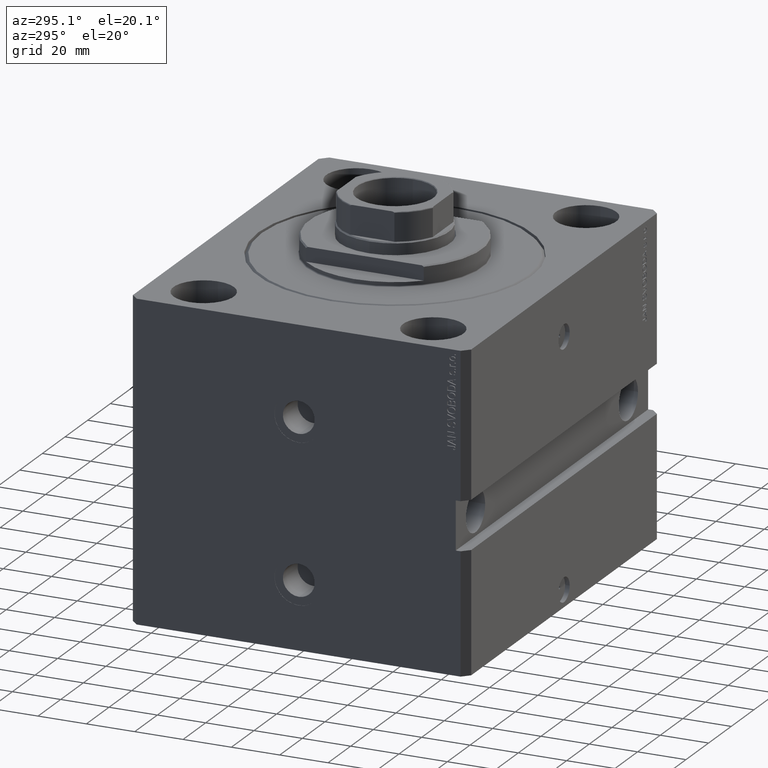
[diagram: clean part render]
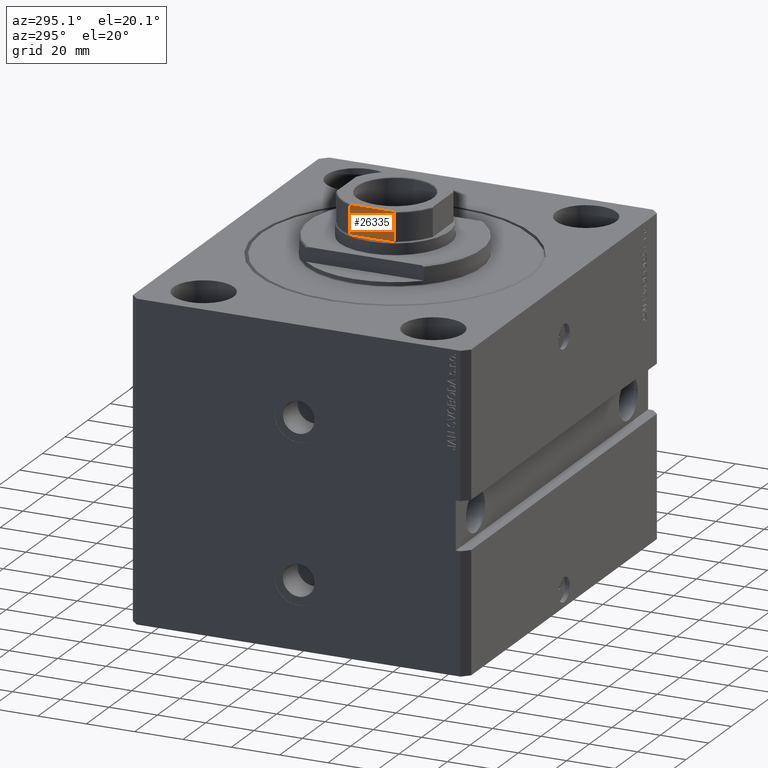
[diagram: same view with one face highlighted and labeled with its STEP entity id]
A machine part, auxiliary view. The second image highlights one B-rep face of the part: STEP entity #26335.
In plain terms, the highlighted planar face has unit normal (1, 0, 0).
Its self-contained STEP definition (entity closure, byte-faithful):
#695 = LINE ( 'NONE', #46442, #24553 ) ;
#2732 = EDGE_CURVE ( 'NONE', #18520, #29660, #695, .T. ) ;
#3106 = ORIENTED_EDGE ( 'NONE', *, *, #41017, .F. ) ;
#3302 = ORIENTED_EDGE ( 'NONE', *, *, #36640, .T. ) ;
#3696 = EDGE_CURVE ( 'NONE', #18520, #36422, #8199, .T. ) ;
#4657 = CARTESIAN_POINT ( 'NONE',  ( -20.00000000000000355, 20.00000000000000000, 126.1000000000000227 ) ) ;
#5206 = CARTESIAN_POINT ( 'NONE',  ( -20.00000000000000355, 20.00000000000000000, 126.1000000000000227 ) ) ;
#5367 = DIRECTION ( 'NONE',  ( 8.673617379884035472E-17, -1.000000000000000000, 0.000000000000000000 ) ) ;
#5814 = EDGE_CURVE ( 'NONE', #43499, #36422, #9123, .T. ) ;
#6103 = CARTESIAN_POINT ( 'NONE',  ( -20.00000000000000355, 9.135966866521629370, 125.7203262903151000 ) ) ;
#7344 = EDGE_CURVE ( 'NONE', #29660, #22532, #32468, .T. ) ;
#8199 = LINE ( 'NONE', #19577, #48292 ) ;
#8425 = CARTESIAN_POINT ( 'NONE',  ( -20.00000000000000000, -8.377106304411482185, 126.0787779673725169 ) ) ;
#9123 = B_SPLINE_CURVE_WITH_KNOTS ( 'NONE', 3,
 ( #25883, #32815, #33059, #14027, #29359, #21186, #14764, #6103, #44438, #48654 ),
 .UNSPECIFIED., .F., .F.,
 ( 4, 2, 2, 2, 4 ),
 ( 0.000000000000000000, 0.0007281986681936567602, 0.001092298002290495494, 0.001274347669338912531, 0.001456397336387329784 ),
 .UNSPECIFIED. ) ;
#9319 = AXIS2_PLACEMENT_3D ( 'NONE', #4657, #12101, #22745 ) ;
#11907 = CARTESIAN_POINT ( 'NONE',  ( -20.00000000000000355, -8.731041210088292814, 125.9862065548025782 ) ) ;
#12101 = DIRECTION ( 'NONE',  ( 1.000000000000000000, 8.673617379884034239E-17, -0.000000000000000000 ) ) ;
#12145 = CARTESIAN_POINT ( 'NONE',  ( -20.00000000000000000, -8.847700323750244067, 125.9454059444999814 ) ) ;
#13139 = DIRECTION ( 'NONE',  ( 8.673617379884035472E-17, -1.000000000000000000, 0.000000000000000000 ) ) ;
#14027 = CARTESIAN_POINT ( 'NONE',  ( -20.00000000000000355, 8.731854386667045276, 125.9859761974170027 ) ) ;
#14347 = CARTESIAN_POINT ( 'NONE',  ( -20.00000000000000000, -9.165151389911677882, 114.1000000000001364 ) ) ;
#14365 = VECTOR ( 'NONE', #13139, 1000.000000000000000 ) ;
#14558 = EDGE_LOOP ( 'NONE', ( #20333, #3302, #3106, #42876, #27323, #36076 ) ) ;
#14764 = CARTESIAN_POINT ( 'NONE',  ( -20.00000000000000355, 9.056020599733265897, 125.8137161059354412 ) ) ;
#16825 = VECTOR ( 'NONE', #47565, 1000.000000000000000 ) ;
#18520 = VERTEX_POINT ( 'NONE', #37776 ) ;
#19577 = CARTESIAN_POINT ( 'NONE',  ( -19.99999999999999645, 9.165151389911683211, -0.001000000000001000089 ) ) ;
#20270 = CARTESIAN_POINT ( 'NONE',  ( -20.00000000000000355, 7.889866919029741688, 126.1000000000000227 ) ) ;
#20333 = ORIENTED_EDGE ( 'NONE', *, *, #7344, .T. ) ;
#21138 = CARTESIAN_POINT ( 'NONE',  ( -20.00000000000000000, -9.165151389911677882, 125.6000000000000227 ) ) ;
#21186 = CARTESIAN_POINT ( 'NONE',  ( -20.00000000000000711, 9.005944049512756067, 125.8509746237501048 ) ) ;
#22532 = VERTEX_POINT ( 'NONE', #21138 ) ;
#22745 = DIRECTION ( 'NONE',  ( -8.673617379884034239E-17, 1.000000000000000000, 0.000000000000000000 ) ) ;
#23737 = CARTESIAN_POINT ( 'NONE',  ( -19.99999999999999645, -8.134263528852958558, 126.1000000000000227 ) ) ;
#23987 = CARTESIAN_POINT ( 'NONE',  ( -20.00000000000000000, -9.165151389911677882, 125.6000000000000227 ) ) ;
#24490 = LINE ( 'NONE', #5206, #14365 ) ;
#24553 = VECTOR ( 'NONE', #5367, 1000.000000000000000 ) ;
#25883 = CARTESIAN_POINT ( 'NONE',  ( -20.00000000000000355, 7.889866919029741688, 126.1000000000000227 ) ) ;
#26335 = ADVANCED_FACE ( 'NONE', ( #31132 ), #45501, .F. ) ;
#27323 = ORIENTED_EDGE ( 'NONE', *, *, #3696, .F. ) ;
#29359 = CARTESIAN_POINT ( 'NONE',  ( -20.00000000000000355, 8.849170428565221513, 125.9446655850051968 ) ) ;
#29660 = VERTEX_POINT ( 'NONE', #14347 ) ;
#31132 = FACE_OUTER_BOUND ( 'NONE', #14558, .T. ) ;
#32468 = LINE ( 'NONE', #40118, #16825 ) ;
#32815 = CARTESIAN_POINT ( 'NONE',  ( -19.99999999999999645, 8.134318822980977970, 126.1000000000000227 ) ) ;
#33059 = CARTESIAN_POINT ( 'NONE',  ( -20.00000000000000355, 8.376270842886087920, 126.0790317661354152 ) ) ;
#34541 = B_SPLINE_CURVE_WITH_KNOTS ( 'NONE', 3,
 ( #23987, #46020, #39309, #42052, #42782, #12145, #11907, #8425, #23737, #34871 ),
 .UNSPECIFIED., .F., .F.,
 ( 4, 2, 2, 2, 4 ),
 ( 0.000000000000000000, 0.0001842078696387973956, 0.0003684157392775947912, 0.0007368314785551895825, 0.001473662957110379165 ),
 .UNSPECIFIED. ) ;
#34871 = CARTESIAN_POINT ( 'NONE',  ( -20.00000000000000355, -7.889866919029736358, 126.1000000000000227 ) ) ;
#35793 = DIRECTION ( 'NONE',  ( -0.000000000000000000, -0.000000000000000000, 1.000000000000000000 ) ) ;
#36076 = ORIENTED_EDGE ( 'NONE', *, *, #2732, .T. ) ;
#36422 = VERTEX_POINT ( 'NONE', #48271 ) ;
#36640 = EDGE_CURVE ( 'NONE', #22532, #45868, #34541, .T. ) ;
#37776 = CARTESIAN_POINT ( 'NONE',  ( -19.99999999999999645, 9.165151389911684987, 114.1000000000001364 ) ) ;
#39309 = CARTESIAN_POINT ( 'NONE',  ( -20.00000000000000355, -9.135943898188767065, 125.7204496596642542 ) ) ;
#40118 = CARTESIAN_POINT ( 'NONE',  ( -20.00000000000000000, -9.165151389911677882, -0.001000000000001000089 ) ) ;
#41017 = EDGE_CURVE ( 'NONE', #43499, #45868, #24490, .T. ) ;
#42052 = CARTESIAN_POINT ( 'NONE',  ( -19.99999999999999645, -9.055524318101877412, 125.8141986763098288 ) ) ;
#42782 = CARTESIAN_POINT ( 'NONE',  ( -20.00000000000000000, -9.005650948982575343, 125.8512182151568481 ) ) ;
#42876 = ORIENTED_EDGE ( 'NONE', *, *, #5814, .T. ) ;
#43499 = VERTEX_POINT ( 'NONE', #20270 ) ;
#44438 = CARTESIAN_POINT ( 'NONE',  ( -20.00000000000000711, 9.165151389911667223, 125.6622865831653115 ) ) ;
#44672 = CARTESIAN_POINT ( 'NONE',  ( -20.00000000000000355, -7.889866919029736358, 126.1000000000000227 ) ) ;
#45501 = PLANE ( 'NONE',  #9319 ) ;
#45868 = VERTEX_POINT ( 'NONE', #44672 ) ;
#46020 = CARTESIAN_POINT ( 'NONE',  ( -19.99999999999999645, -9.165151389911677882, 125.6624095850606437 ) ) ;
#46442 = CARTESIAN_POINT ( 'NONE',  ( -20.00000000000000355, 20.00000000000000000, 114.1000000000000085 ) ) ;
#47565 = DIRECTION ( 'NONE',  ( -0.000000000000000000, -0.000000000000000000, 1.000000000000000000 ) ) ;
#48271 = CARTESIAN_POINT ( 'NONE',  ( -19.99999999999999645, 9.165151389911683211, 125.6000000000000227 ) ) ;
#48292 = VECTOR ( 'NONE', #35793, 1000.000000000000000 ) ;
#48654 = CARTESIAN_POINT ( 'NONE',  ( -19.99999999999999645, 9.165151389911683211, 125.6000000000000227 ) ) ;